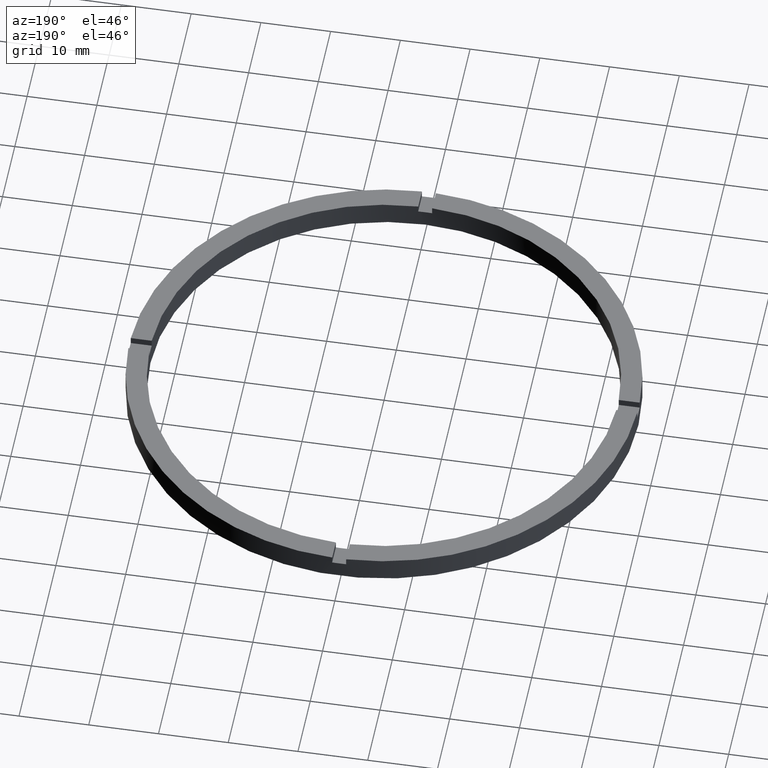
[diagram: clean part render]
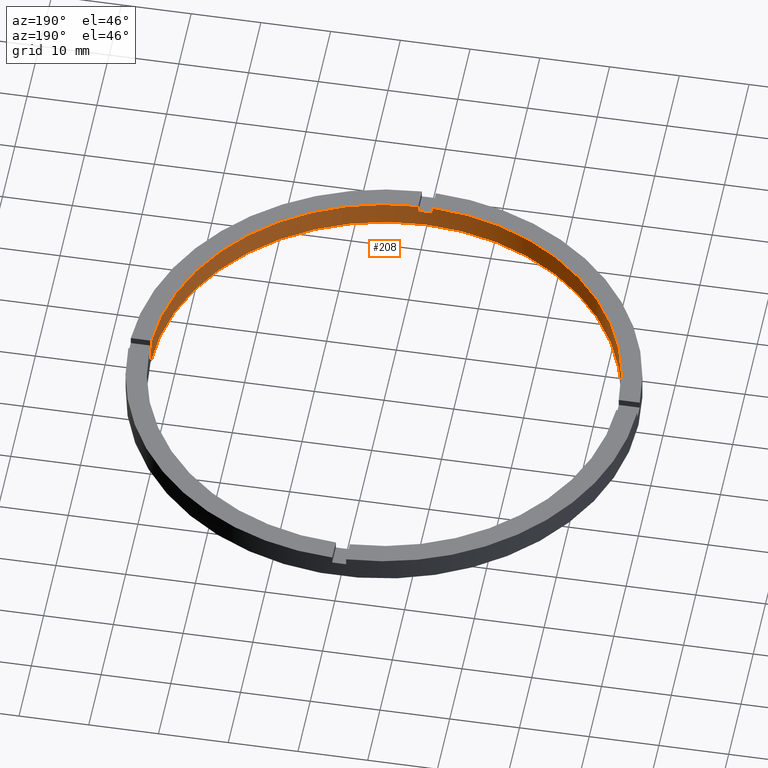
[diagram: same view with one face highlighted and labeled with its STEP entity id]
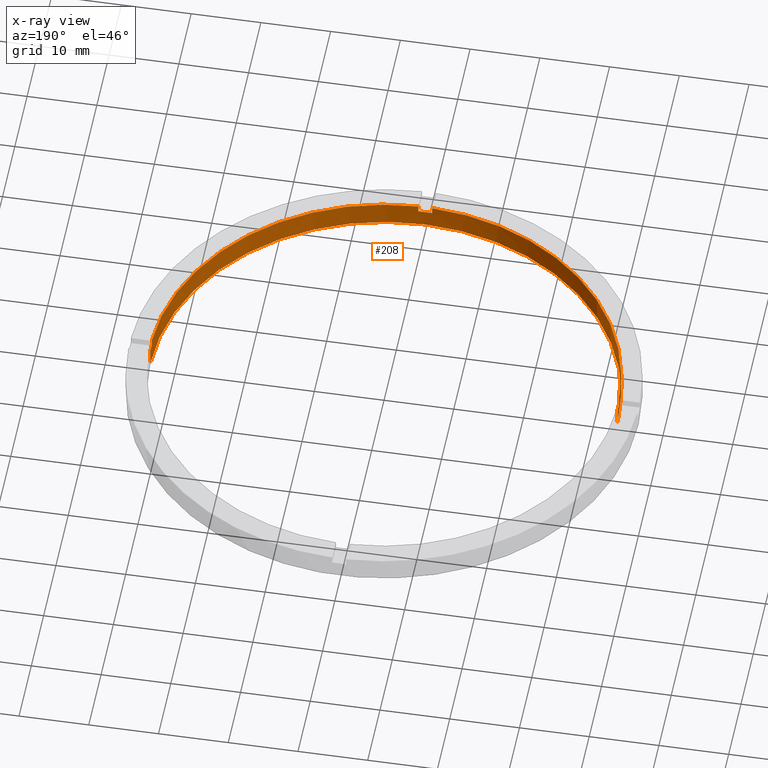
[diagram: x-ray of the same camera — body ghosted, the highlighted face saturated]
A machine part, auxiliary view. The second image highlights one B-rep face of the part: STEP entity #208.
The next image is the same camera in x-ray: the body ghosted, the highlighted face saturated — about 0% of this face is hidden behind the body in this view.
In plain terms, the highlighted cylindrical surface (partial cylindrical patch) has radius 33.5 mm, axis along (-0, -0, -1).
Its self-contained STEP definition (entity closure, byte-faithful):
#11 = DIRECTION ( 'NONE',  ( 1.000000000000000000, 0.000000000000000000, 0.000000000000000000 ) ) ;
#16 = AXIS2_PLACEMENT_3D ( 'NONE', #36, #525, #600 ) ;
#17 = VECTOR ( 'NONE', #781, 1000.000000000000000 ) ;
#30 = DIRECTION ( 'NONE',  ( 0.000000000000000000, 0.000000000000000000, 1.000000000000000000 ) ) ;
#36 = CARTESIAN_POINT ( 'NONE',  ( 0.000000000000000000, 0.000000000000000000, 3.500000000000000000 ) ) ;
#39 = CARTESIAN_POINT ( 'NONE',  ( -33.50000000000000000, 0.000000000000000000, 2.500000000000000000 ) ) ;
#41 = LINE ( 'NONE', #554, #284 ) ;
#46 = VERTEX_POINT ( 'NONE', #39 ) ;
#60 = VERTEX_POINT ( 'NONE', #263 ) ;
#64 = EDGE_LOOP ( 'NONE', ( #610, #459, #484, #211, #421, #461, #205, #189, #317, #585, #745, #65 ) ) ;
#65 = ORIENTED_EDGE ( 'NONE', *, *, #201, .F. ) ;
#67 = VERTEX_POINT ( 'NONE', #426 ) ;
#92 = EDGE_CURVE ( 'NONE', #46, #308, #109, .T. ) ;
#105 = DIRECTION ( 'NONE',  ( -0.000000000000000000, -0.000000000000000000, -1.000000000000000000 ) ) ;
#109 = LINE ( 'NONE', #131, #623 ) ;
#110 = LINE ( 'NONE', #478, #631 ) ;
#119 = VECTOR ( 'NONE', #105, 1000.000000000000000 ) ;
#129 = CARTESIAN_POINT ( 'NONE',  ( 0.000000000000000000, 0.000000000000000000, 3.500000000000000000 ) ) ;
#131 = CARTESIAN_POINT ( 'NONE',  ( -33.50000000000000000, 0.000000000000000000, 3.500000000000000000 ) ) ;
#146 = CARTESIAN_POINT ( 'NONE',  ( -1.000000000000160538, -33.48507130050644065, 2.500000000000000000 ) ) ;
#156 = EDGE_CURVE ( 'NONE', #685, #60, #370, .T. ) ;
#173 = CARTESIAN_POINT ( 'NONE',  ( -1.000000000000160538, -33.48507130050644065, 3.500000000000000000 ) ) ;
#179 = EDGE_CURVE ( 'NONE', #60, #349, #110, .T. ) ;
#183 = CARTESIAN_POINT ( 'NONE',  ( -1.000000000000160538, -33.48507130050644065, 3.500000000000000000 ) ) ;
#188 = EDGE_CURVE ( 'NONE', #396, #67, #565, .T. ) ;
#189 = ORIENTED_EDGE ( 'NONE', *, *, #654, .F. ) ;
#201 = EDGE_CURVE ( 'NONE', #685, #577, #41, .T. ) ;
#205 = ORIENTED_EDGE ( 'NONE', *, *, #730, .T. ) ;
#208 = ADVANCED_FACE ( 'NONE', ( #534 ), #537, .F. ) ;
#211 = ORIENTED_EDGE ( 'NONE', *, *, #92, .F. ) ;
#233 = CARTESIAN_POINT ( 'NONE',  ( 33.50000000000000000, 4.102566777143633774E-15, 0.000000000000000000 ) ) ;
#251 = AXIS2_PLACEMENT_3D ( 'NONE', #129, #258, #424 ) ;
#258 = DIRECTION ( 'NONE',  ( -0.000000000000000000, -0.000000000000000000, -1.000000000000000000 ) ) ;
#263 = CARTESIAN_POINT ( 'NONE',  ( 33.50000000000000000, 4.102566777143633774E-15, 2.500000000000000000 ) ) ;
#266 = AXIS2_PLACEMENT_3D ( 'NONE', #361, #599, #697 ) ;
#270 = DIRECTION ( 'NONE',  ( -0.000000000000000000, -0.000000000000000000, -1.000000000000000000 ) ) ;
#273 = DIRECTION ( 'NONE',  ( 0.000000000000000000, 0.000000000000000000, 1.000000000000000000 ) ) ;
#284 = VECTOR ( 'NONE', #30, 1000.000000000000000 ) ;
#293 = LINE ( 'NONE', #704, #17 ) ;
#295 = VERTEX_POINT ( 'NONE', #402 ) ;
#296 = VERTEX_POINT ( 'NONE', #742 ) ;
#308 = VERTEX_POINT ( 'NONE', #777 ) ;
#312 = DIRECTION ( 'NONE',  ( 0.000000000000000000, 0.000000000000000000, 1.000000000000000000 ) ) ;
#317 = ORIENTED_EDGE ( 'NONE', *, *, #188, .T. ) ;
#330 = EDGE_CURVE ( 'NONE', #46, #621, #543, .T. ) ;
#335 = VECTOR ( 'NONE', #480, 1000.000000000000000 ) ;
#341 = CIRCLE ( 'NONE', #16, 33.50000000000000000 ) ;
#349 = VERTEX_POINT ( 'NONE', #233 ) ;
#350 = CIRCLE ( 'NONE', #266, 33.50000000000000000 ) ;
#361 = CARTESIAN_POINT ( 'NONE',  ( 0.000000000000000000, 0.000000000000000000, 0.000000000000000000 ) ) ;
#369 = LINE ( 'NONE', #432, #119 ) ;
#370 = CIRCLE ( 'NONE', #758, 33.50000000000000000 ) ;
#372 = DIRECTION ( 'NONE',  ( 1.000000000000000000, 0.000000000000000000, 0.000000000000000000 ) ) ;
#373 = CIRCLE ( 'NONE', #526, 33.50000000000000000 ) ;
#381 = DIRECTION ( 'NONE',  ( 0.000000000000000000, 0.000000000000000000, 1.000000000000000000 ) ) ;
#396 = VERTEX_POINT ( 'NONE', #146 ) ;
#402 = CARTESIAN_POINT ( 'NONE',  ( 0.9999999999998395728, -33.48507130050644776, 3.500000000000000000 ) ) ;
#421 = ORIENTED_EDGE ( 'NONE', *, *, #330, .T. ) ;
#424 = DIRECTION ( 'NONE',  ( -1.000000000000000000, 0.000000000000000000, 0.000000000000000000 ) ) ;
#426 = CARTESIAN_POINT ( 'NONE',  ( 0.9999999999998395728, -33.48507130050644776, 2.500000000000000000 ) ) ;
#429 = CARTESIAN_POINT ( 'NONE',  ( 33.48507130050644065, -1.000000000000157874, 2.500000000000000000 ) ) ;
#432 = CARTESIAN_POINT ( 'NONE',  ( -33.48507130050644065, -1.000000000000026645, 3.500000000000000000 ) ) ;
#456 = AXIS2_PLACEMENT_3D ( 'NONE', #647, #768, #11 ) ;
#459 = ORIENTED_EDGE ( 'NONE', *, *, #179, .T. ) ;
#461 = ORIENTED_EDGE ( 'NONE', *, *, #688, .F. ) ;
#478 = CARTESIAN_POINT ( 'NONE',  ( 33.50000000000000000, 4.102566777143633774E-15, 3.500000000000000000 ) ) ;
#480 = DIRECTION ( 'NONE',  ( 0.000000000000000000, 0.000000000000000000, 1.000000000000000000 ) ) ;
#484 = ORIENTED_EDGE ( 'NONE', *, *, #736, .F. ) ;
#489 = EDGE_CURVE ( 'NONE', #295, #67, #293, .T. ) ;
#494 = CARTESIAN_POINT ( 'NONE',  ( 0.000000000000000000, 0.000000000000000000, 2.500000000000000000 ) ) ;
#524 = CARTESIAN_POINT ( 'NONE',  ( 0.000000000000000000, 0.000000000000000000, 3.500000000000000000 ) ) ;
#525 = DIRECTION ( 'NONE',  ( 0.000000000000000000, 0.000000000000000000, 1.000000000000000000 ) ) ;
#526 = AXIS2_PLACEMENT_3D ( 'NONE', #524, #273, #372 ) ;
#529 = AXIS2_PLACEMENT_3D ( 'NONE', #494, #381, #615 ) ;
#534 = FACE_OUTER_BOUND ( 'NONE', #64, .T. ) ;
#537 = CYLINDRICAL_SURFACE ( 'NONE', #251, 33.50000000000000000 ) ;
#543 = CIRCLE ( 'NONE', #529, 33.50000000000000000 ) ;
#554 = CARTESIAN_POINT ( 'NONE',  ( 33.48507130050644065, -1.000000000000157874, 3.500000000000000000 ) ) ;
#565 = CIRCLE ( 'NONE', #456, 33.50000000000000000 ) ;
#577 = VERTEX_POINT ( 'NONE', #580 ) ;
#580 = CARTESIAN_POINT ( 'NONE',  ( 33.48507130050644065, -1.000000000000157874, 3.500000000000000000 ) ) ;
#582 = DIRECTION ( 'NONE',  ( -0.000000000000000000, -0.000000000000000000, -1.000000000000000000 ) ) ;
#585 = ORIENTED_EDGE ( 'NONE', *, *, #489, .F. ) ;
#599 = DIRECTION ( 'NONE',  ( 0.000000000000000000, 0.000000000000000000, 1.000000000000000000 ) ) ;
#600 = DIRECTION ( 'NONE',  ( 1.000000000000000000, 0.000000000000000000, 0.000000000000000000 ) ) ;
#610 = ORIENTED_EDGE ( 'NONE', *, *, #156, .T. ) ;
#615 = DIRECTION ( 'NONE',  ( 1.000000000000000000, 0.000000000000000000, 0.000000000000000000 ) ) ;
#621 = VERTEX_POINT ( 'NONE', #662 ) ;
#623 = VECTOR ( 'NONE', #270, 1000.000000000000000 ) ;
#631 = VECTOR ( 'NONE', #582, 1000.000000000000000 ) ;
#633 = LINE ( 'NONE', #183, #335 ) ;
#647 = CARTESIAN_POINT ( 'NONE',  ( 0.000000000000000000, 0.000000000000000000, 2.500000000000000000 ) ) ;
#654 = EDGE_CURVE ( 'NONE', #396, #692, #633, .T. ) ;
#662 = CARTESIAN_POINT ( 'NONE',  ( -33.48507130050644065, -1.000000000000026645, 2.500000000000000000 ) ) ;
#666 = CARTESIAN_POINT ( 'NONE',  ( 0.000000000000000000, 0.000000000000000000, 2.500000000000000000 ) ) ;
#685 = VERTEX_POINT ( 'NONE', #429 ) ;
#688 = EDGE_CURVE ( 'NONE', #296, #621, #369, .T. ) ;
#692 = VERTEX_POINT ( 'NONE', #173 ) ;
#697 = DIRECTION ( 'NONE',  ( 1.000000000000000000, 0.000000000000000000, 0.000000000000000000 ) ) ;
#704 = CARTESIAN_POINT ( 'NONE',  ( 0.9999999999998395728, -33.48507130050644776, 3.500000000000000000 ) ) ;
#730 = EDGE_CURVE ( 'NONE', #296, #692, #373, .T. ) ;
#736 = EDGE_CURVE ( 'NONE', #308, #349, #350, .T. ) ;
#742 = CARTESIAN_POINT ( 'NONE',  ( -33.48507130050644065, -1.000000000000026645, 3.500000000000000000 ) ) ;
#745 = ORIENTED_EDGE ( 'NONE', *, *, #765, .T. ) ;
#758 = AXIS2_PLACEMENT_3D ( 'NONE', #666, #312, #762 ) ;
#762 = DIRECTION ( 'NONE',  ( 1.000000000000000000, 0.000000000000000000, 0.000000000000000000 ) ) ;
#765 = EDGE_CURVE ( 'NONE', #295, #577, #341, .T. ) ;
#768 = DIRECTION ( 'NONE',  ( -0.000000000000000000, 0.000000000000000000, 1.000000000000000000 ) ) ;
#777 = CARTESIAN_POINT ( 'NONE',  ( -33.50000000000000000, 0.000000000000000000, 0.000000000000000000 ) ) ;
#781 = DIRECTION ( 'NONE',  ( -0.000000000000000000, -0.000000000000000000, -1.000000000000000000 ) ) ;